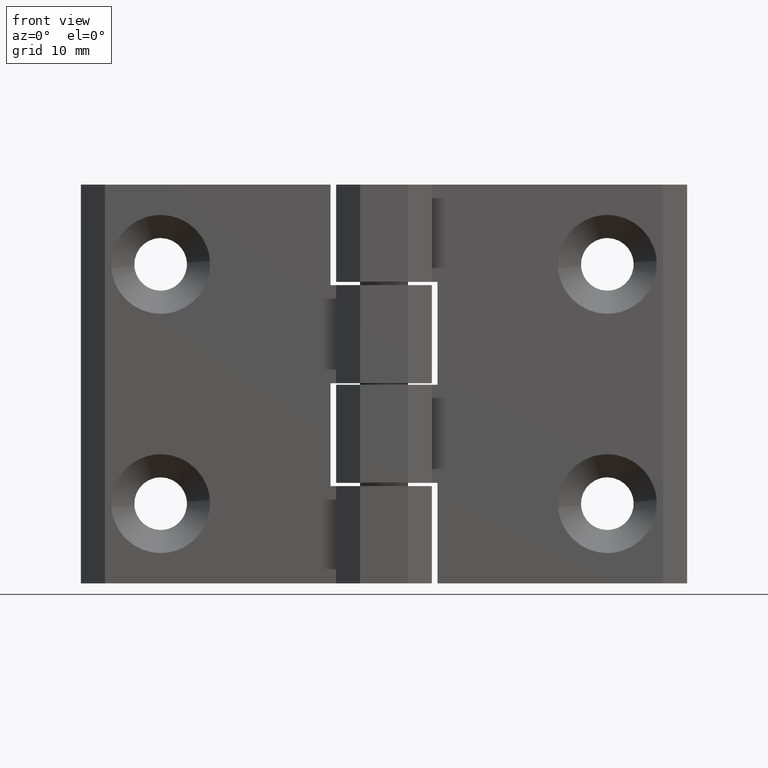
[diagram: clean part render]
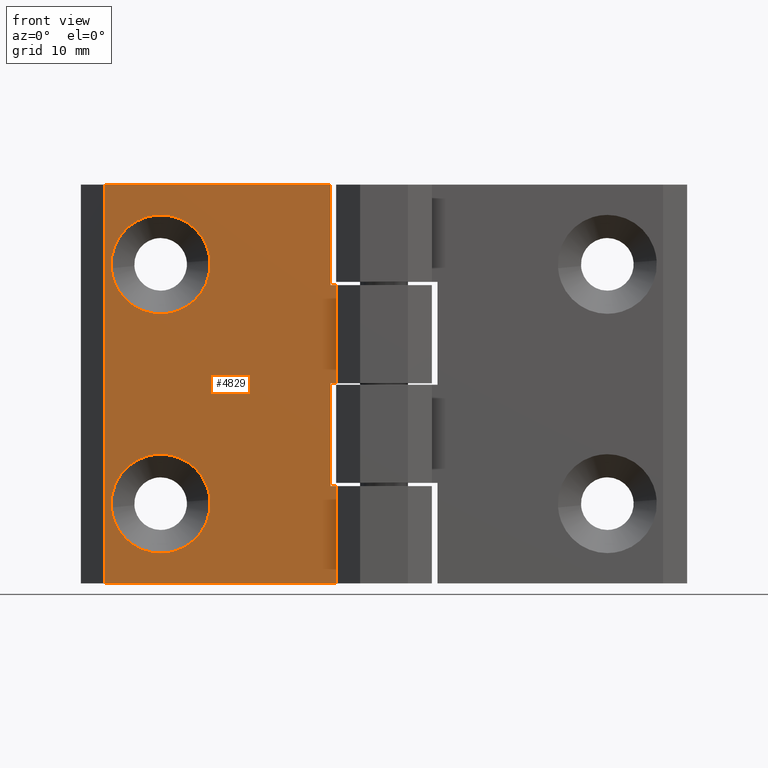
[diagram: same view with one face highlighted and labeled with its STEP entity id]
A machine part, front view. The second image highlights one B-rep face of the part: STEP entity #4829.
In plain terms, the highlighted face is a freeform B-spline surface patch.
Its self-contained STEP definition (entity closure, byte-faithful):
#2958=CARTESIAN_POINT('',(-21.819112233178000,0.500000023746777,40.486448212179347));
#2959=VERTEX_POINT('',#2958);
#2965=CARTESIAN_POINT('',(-27.999998670071001,0.500000023747903,46.200000864453287));
#2966=VERTEX_POINT('',#2965);
#2967=CARTESIAN_POINT('',(-27.999998670071001,0.500000023747903,46.200000864453287));
#2968=CARTESIAN_POINT('',(-22.268778578961481,0.500000023747903,46.200000864453294));
#2969=CARTESIAN_POINT('',(-21.819112233177993,0.500000023746777,40.486448212179354));
#2977=(BOUNDED_CURVE()B_SPLINE_CURVE(2,(#2967,#2968,#2969),.UNSPECIFIED.,.F.,.U.)B_SPLINE_CURVE_WITH_KNOTS((3,3),(0.0,0.236331300632287),.UNSPECIFIED.)CURVE()GEOMETRIC_REPRESENTATION_ITEM()RATIONAL_B_SPLINE_CURVE((1.0,0.723120658605758,0.969723356170815))REPRESENTATION_ITEM(''));
#2978=EDGE_CURVE('',#2966,#2959,#2977,.T.);
#2980=CARTESIAN_POINT('',(-34.180885106963999,0.500000023746779,39.513555587616743));
#2981=VERTEX_POINT('',#2980);
#2982=CARTESIAN_POINT('',(-34.180885106963999,0.500000023746779,39.513555587616736));
#2983=CARTESIAN_POINT('',(-34.199997634626236,0.500000023747903,39.756403277124548));
#2984=CARTESIAN_POINT('',(-34.199997634626243,0.500000023747903,40.000001899898052));
#2985=CARTESIAN_POINT('',(-34.199997634626229,0.500000023747903,46.200000864453301));
#2986=CARTESIAN_POINT('',(-27.999998670071001,0.500000023747903,46.200000864453287));
#2994=(BOUNDED_CURVE()B_SPLINE_CURVE(2,(#2982,#2983,#2984,#2985,#2986),.UNSPECIFIED.,.F.,.U.)B_SPLINE_CURVE_WITH_KNOTS((3,2,3),(0.736331300632287,0.750000000000000,1.0),.UNSPECIFIED.)CURVE()GEOMETRIC_REPRESENTATION_ITEM()RATIONAL_B_SPLINE_CURVE((0.969723356170815,0.983986122580789,1.0,0.707106781186547,1.0))REPRESENTATION_ITEM(''));
#2995=EDGE_CURVE('',#2981,#2966,#2994,.T.);
#3032=CARTESIAN_POINT('',(-27.999998670071001,0.500000023747903,33.800002935342803));
#3033=VERTEX_POINT('',#3032);
#3034=CARTESIAN_POINT('',(-27.999998670071001,0.500000023747903,33.800002935342803));
#3035=CARTESIAN_POINT('',(-33.731218761180479,0.500000023747903,33.800002935342810));
#3036=CARTESIAN_POINT('',(-34.180885106963999,0.500000023746779,39.513555587616743));
#3044=(BOUNDED_CURVE()B_SPLINE_CURVE(2,(#3034,#3035,#3036),.UNSPECIFIED.,.F.,.U.)B_SPLINE_CURVE_WITH_KNOTS((3,3),(0.500000000000000,0.736331300632286),.UNSPECIFIED.)CURVE()GEOMETRIC_REPRESENTATION_ITEM()RATIONAL_B_SPLINE_CURVE((1.0,0.723120658605760,0.969723356170813))REPRESENTATION_ITEM(''));
#3045=EDGE_CURVE('',#3033,#2981,#3044,.T.);
#3047=CARTESIAN_POINT('',(-21.819112233178000,0.500000023746777,40.486448212179361));
#3048=CARTESIAN_POINT('',(-21.799999705515752,0.500000023747903,40.243600522671549));
#3049=CARTESIAN_POINT('',(-21.799999705515759,0.500000023747903,40.000001899898052));
#3050=CARTESIAN_POINT('',(-21.799999705515759,0.500000023747903,33.800002935342810));
#3051=CARTESIAN_POINT('',(-27.999998670071001,0.500000023747903,33.800002935342803));
#3059=(BOUNDED_CURVE()B_SPLINE_CURVE(2,(#3047,#3048,#3049,#3050,#3051),.UNSPECIFIED.,.F.,.U.)B_SPLINE_CURVE_WITH_KNOTS((3,2,3),(0.236331300632287,0.250000000000000,0.500000000000000),.UNSPECIFIED.)CURVE()GEOMETRIC_REPRESENTATION_ITEM()RATIONAL_B_SPLINE_CURVE((0.969723356170815,0.983986122580789,1.0,0.707106781186547,1.0))REPRESENTATION_ITEM(''));
#3060=EDGE_CURVE('',#2959,#3033,#3059,.T.);
#3286=CARTESIAN_POINT('',(-21.819112233177989,0.500000023746775,10.486448212179351));
#3287=VERTEX_POINT('',#3286);
#3293=CARTESIAN_POINT('',(-27.999998670071001,0.500000023747903,16.200000864453280));
#3294=VERTEX_POINT('',#3293);
#3295=CARTESIAN_POINT('',(-27.999998670071001,0.500000023747903,16.200000864453280));
#3296=CARTESIAN_POINT('',(-22.268778578961484,0.500000023747903,16.200000864453283));
#3297=CARTESIAN_POINT('',(-21.819112233177989,0.500000023746775,10.486448212179356));
#3305=(BOUNDED_CURVE()B_SPLINE_CURVE(2,(#3295,#3296,#3297),.UNSPECIFIED.,.F.,.U.)B_SPLINE_CURVE_WITH_KNOTS((3,3),(0.0,0.236331300632288),.UNSPECIFIED.)CURVE()GEOMETRIC_REPRESENTATION_ITEM()RATIONAL_B_SPLINE_CURVE((1.0,0.723120658605758,0.969723356170815))REPRESENTATION_ITEM(''));
#3306=EDGE_CURVE('',#3294,#3287,#3305,.T.);
#3308=CARTESIAN_POINT('',(-34.180885106963999,0.500000023746777,9.513555587616732));
#3309=VERTEX_POINT('',#3308);
#3310=CARTESIAN_POINT('',(-34.180885106963999,0.500000023746777,9.513555587616732));
#3311=CARTESIAN_POINT('',(-34.199997634626229,0.500000023747903,9.756403277124543));
#3312=CARTESIAN_POINT('',(-34.199997634626243,0.500000023747903,10.000001899898040));
#3313=CARTESIAN_POINT('',(-34.199997634626229,0.500000023747903,16.200000864453287));
#3314=CARTESIAN_POINT('',(-27.999998670071001,0.500000023747903,16.200000864453280));
#3322=(BOUNDED_CURVE()B_SPLINE_CURVE(2,(#3310,#3311,#3312,#3313,#3314),.UNSPECIFIED.,.F.,.U.)B_SPLINE_CURVE_WITH_KNOTS((3,2,3),(0.736331300632288,0.750000000000000,1.0),.UNSPECIFIED.)CURVE()GEOMETRIC_REPRESENTATION_ITEM()RATIONAL_B_SPLINE_CURVE((0.969723356170815,0.983986122580789,1.0,0.707106781186547,1.0))REPRESENTATION_ITEM(''));
#3323=EDGE_CURVE('',#3309,#3294,#3322,.T.);
#3360=CARTESIAN_POINT('',(-27.999998670071001,0.500000023747903,3.800002935342802));
#3361=VERTEX_POINT('',#3360);
#3362=CARTESIAN_POINT('',(-27.999998670071001,0.500000023747903,3.800002935342802));
#3363=CARTESIAN_POINT('',(-33.731218761180543,0.500000023747903,3.800002935342801));
#3364=CARTESIAN_POINT('',(-34.180885106963991,0.500000023746777,9.513555587616732));
#3372=(BOUNDED_CURVE()B_SPLINE_CURVE(2,(#3362,#3363,#3364),.UNSPECIFIED.,.F.,.U.)B_SPLINE_CURVE_WITH_KNOTS((3,3),(0.500000000000000,0.736331300632289),.UNSPECIFIED.)CURVE()GEOMETRIC_REPRESENTATION_ITEM()RATIONAL_B_SPLINE_CURVE((1.0,0.723120658605757,0.969723356170818))REPRESENTATION_ITEM(''));
#3373=EDGE_CURVE('',#3361,#3309,#3372,.T.);
#3375=CARTESIAN_POINT('',(-21.819112233177993,0.500000023746775,10.486448212179358));
#3376=CARTESIAN_POINT('',(-21.799999705515763,0.500000023747903,10.243600522671537));
#3377=CARTESIAN_POINT('',(-21.799999705515759,0.500000023747903,10.000001899898040));
#3378=CARTESIAN_POINT('',(-21.799999705515759,0.500000023747903,3.800002935342801));
#3379=CARTESIAN_POINT('',(-27.999998670071001,0.500000023747903,3.800002935342802));
#3387=(BOUNDED_CURVE()B_SPLINE_CURVE(2,(#3375,#3376,#3377,#3378,#3379),.UNSPECIFIED.,.F.,.U.)B_SPLINE_CURVE_WITH_KNOTS((3,2,3),(0.236331300632287,0.250000000000000,0.500000000000000),.UNSPECIFIED.)CURVE()GEOMETRIC_REPRESENTATION_ITEM()RATIONAL_B_SPLINE_CURVE((0.969723356170815,0.983986122580789,1.0,0.707106781186547,1.0))REPRESENTATION_ITEM(''));
#3388=EDGE_CURVE('',#3287,#3361,#3387,.T.);
#4077=CARTESIAN_POINT('',(-6.699998988304300,0.500000023748504,37.400001776404650));
#4078=VERTEX_POINT('',#4077);
#4079=CARTESIAN_POINT('',(-5.999998955055800,0.500000023748491,37.400001776404700));
#4080=VERTEX_POINT('',#4079);
#4081=CARTESIAN_POINT('',(-6.699998988304300,0.500000023748504,37.400001776404650));
#4082=CARTESIAN_POINT('',(-5.999998955055800,0.500000023748491,37.400001776404700));
#4083=QUASI_UNIFORM_CURVE('',1,(#4081,#4082),.UNSPECIFIED.,.F.,.U.);
#4084=EDGE_CURVE('',#4078,#4080,#4083,.T.);
#4164=CARTESIAN_POINT('',(-6.699998988304300,0.500000023748504,25.100001192186049));
#4165=VERTEX_POINT('',#4164);
#4225=CARTESIAN_POINT('',(-5.999998955055800,0.500000023748491,25.100001192186049));
#4226=VERTEX_POINT('',#4225);
#4232=CARTESIAN_POINT('',(-6.699998988304300,0.500000023748504,25.100001192186049));
#4233=CARTESIAN_POINT('',(-5.999998955055800,0.500000023748491,25.100001192186049));
#4234=QUASI_UNIFORM_CURVE('',1,(#4232,#4233),.UNSPECIFIED.,.F.,.U.);
#4235=EDGE_CURVE('',#4165,#4226,#4234,.T.);
#4253=CARTESIAN_POINT('',(-5.999998955055800,0.500000023748491,12.200000579468901));
#4254=VERTEX_POINT('',#4253);
#4312=CARTESIAN_POINT('',(-6.699998988304300,0.500000023748504,12.200000579468959));
#4313=VERTEX_POINT('',#4312);
#4319=CARTESIAN_POINT('',(-5.999998955055800,0.500000023748491,12.200000579468901));
#4320=CARTESIAN_POINT('',(-6.699998988304300,0.500000023748504,12.200000579468959));
#4321=QUASI_UNIFORM_CURVE('',1,(#4319,#4320),.UNSPECIFIED.,.F.,.U.);
#4322=EDGE_CURVE('',#4254,#4313,#4321,.T.);
#4406=CARTESIAN_POINT('',(-5.999998955055800,0.500000023748491,0.0));
#4407=VERTEX_POINT('',#4406);
#4413=CARTESIAN_POINT('',(-35.000000332481846,0.500000023747411,0.0));
#4414=VERTEX_POINT('',#4413);
#4415=CARTESIAN_POINT('',(-35.000000332481846,0.500000023747411,0.0));
#4416=CARTESIAN_POINT('',(-5.999998955055800,0.500000023748491,0.0));
#4417=QUASI_UNIFORM_CURVE('',1,(#4415,#4416),.UNSPECIFIED.,.F.,.U.);
#4418=EDGE_CURVE('',#4414,#4407,#4417,.T.);
#4446=CARTESIAN_POINT('',(-6.699998988304300,0.500000023747949,50.000002374872601));
#4447=VERTEX_POINT('',#4446);
#4455=CARTESIAN_POINT('',(-6.699998988304300,0.500000023747949,50.000002374872601));
#4456=CARTESIAN_POINT('',(-6.699998988304300,0.500000023748504,37.400001776404650));
#4457=QUASI_UNIFORM_CURVE('',1,(#4455,#4456),.UNSPECIFIED.,.F.,.U.);
#4458=EDGE_CURVE('',#4447,#4078,#4457,.T.);
#4467=CARTESIAN_POINT('',(-6.699998988304300,0.500000023748504,12.200000579468959));
#4468=CARTESIAN_POINT('',(-6.699998988304300,0.500000023748504,25.100001192186049));
#4469=QUASI_UNIFORM_CURVE('',1,(#4467,#4468),.UNSPECIFIED.,.F.,.U.);
#4470=EDGE_CURVE('',#4313,#4165,#4469,.T.);
#4493=CARTESIAN_POINT('',(-35.000000332481846,0.500000023747411,50.000002374872601));
#4494=VERTEX_POINT('',#4493);
#4495=CARTESIAN_POINT('',(-35.000000332481846,0.500000023747411,50.000002374872601));
#4496=CARTESIAN_POINT('',(-35.000000332481846,0.500000023747411,0.0));
#4497=QUASI_UNIFORM_CURVE('',1,(#4495,#4496),.UNSPECIFIED.,.F.,.U.);
#4498=EDGE_CURVE('',#4494,#4414,#4497,.T.);
#4649=CARTESIAN_POINT('',(-5.999998955055800,0.500000023748491,12.200000579468901));
#4650=CARTESIAN_POINT('',(-5.999998955055800,0.500000023748491,0.0));
#4651=QUASI_UNIFORM_CURVE('',1,(#4649,#4650),.UNSPECIFIED.,.F.,.U.);
#4652=EDGE_CURVE('',#4254,#4407,#4651,.T.);
#4663=CARTESIAN_POINT('',(-35.000000332481846,0.500000023747411,50.000002374872601));
#4664=CARTESIAN_POINT('',(-6.699998988304300,0.500000023747949,50.000002374872601));
#4665=QUASI_UNIFORM_CURVE('',1,(#4663,#4664),.UNSPECIFIED.,.F.,.U.);
#4666=EDGE_CURVE('',#4494,#4447,#4665,.T.);
#4790=CARTESIAN_POINT('',(-5.999998955055800,0.500000023748491,37.400001776404700));
#4791=CARTESIAN_POINT('',(-5.999998955055800,0.500000023748491,25.100001192186049));
#4792=QUASI_UNIFORM_CURVE('',1,(#4790,#4791),.UNSPECIFIED.,.F.,.U.);
#4793=EDGE_CURVE('',#4080,#4226,#4792,.T.);
#4800=CARTESIAN_POINT('',(-4.551448942461003,0.500000023747411,-2.497500021715181));
#4801=CARTESIAN_POINT('',(-36.448551122917323,0.500000023747411,-2.497500021715181));
#4802=CARTESIAN_POINT('',(-4.551448942461003,0.500000023747411,52.497503737692362));
#4803=CARTESIAN_POINT('',(-36.448551122917323,0.500000023747411,52.497503737692362));
#4804=B_SPLINE_SURFACE_WITH_KNOTS('',1,1,((#4800,#4802),(#4801,#4803)),.UNSPECIFIED.,.F.,.F.,.U.,(2,2),(2,2),(0.0,31.897102180456319),(0.0,54.995003759407538),.UNSPECIFIED.);
#4805=ORIENTED_EDGE('',*,*,#4458,.F.);
#4806=ORIENTED_EDGE('',*,*,#4666,.F.);
#4807=ORIENTED_EDGE('',*,*,#4498,.T.);
#4808=ORIENTED_EDGE('',*,*,#4418,.T.);
#4809=ORIENTED_EDGE('',*,*,#4652,.F.);
#4810=ORIENTED_EDGE('',*,*,#4322,.T.);
#4811=ORIENTED_EDGE('',*,*,#4470,.T.);
#4812=ORIENTED_EDGE('',*,*,#4235,.T.);
#4813=ORIENTED_EDGE('',*,*,#4793,.F.);
#4814=ORIENTED_EDGE('',*,*,#4084,.F.);
#4815=EDGE_LOOP('',(#4805,#4806,#4807,#4808,#4809,#4810,#4811,#4812,#4813,#4814));
#4816=FACE_OUTER_BOUND('',#4815,.T.);
#4817=ORIENTED_EDGE('',*,*,#3373,.T.);
#4818=ORIENTED_EDGE('',*,*,#3323,.T.);
#4819=ORIENTED_EDGE('',*,*,#3306,.T.);
#4820=ORIENTED_EDGE('',*,*,#3388,.T.);
#4821=EDGE_LOOP('',(#4817,#4818,#4819,#4820));
#4822=FACE_BOUND('',#4821,.T.);
#4823=ORIENTED_EDGE('',*,*,#3045,.T.);
#4824=ORIENTED_EDGE('',*,*,#2995,.T.);
#4825=ORIENTED_EDGE('',*,*,#2978,.T.);
#4826=ORIENTED_EDGE('',*,*,#3060,.T.);
#4827=EDGE_LOOP('',(#4823,#4824,#4825,#4826));
#4828=FACE_BOUND('',#4827,.T.);
#4829=ADVANCED_FACE('',(#4816,#4822,#4828),#4804,.F.);